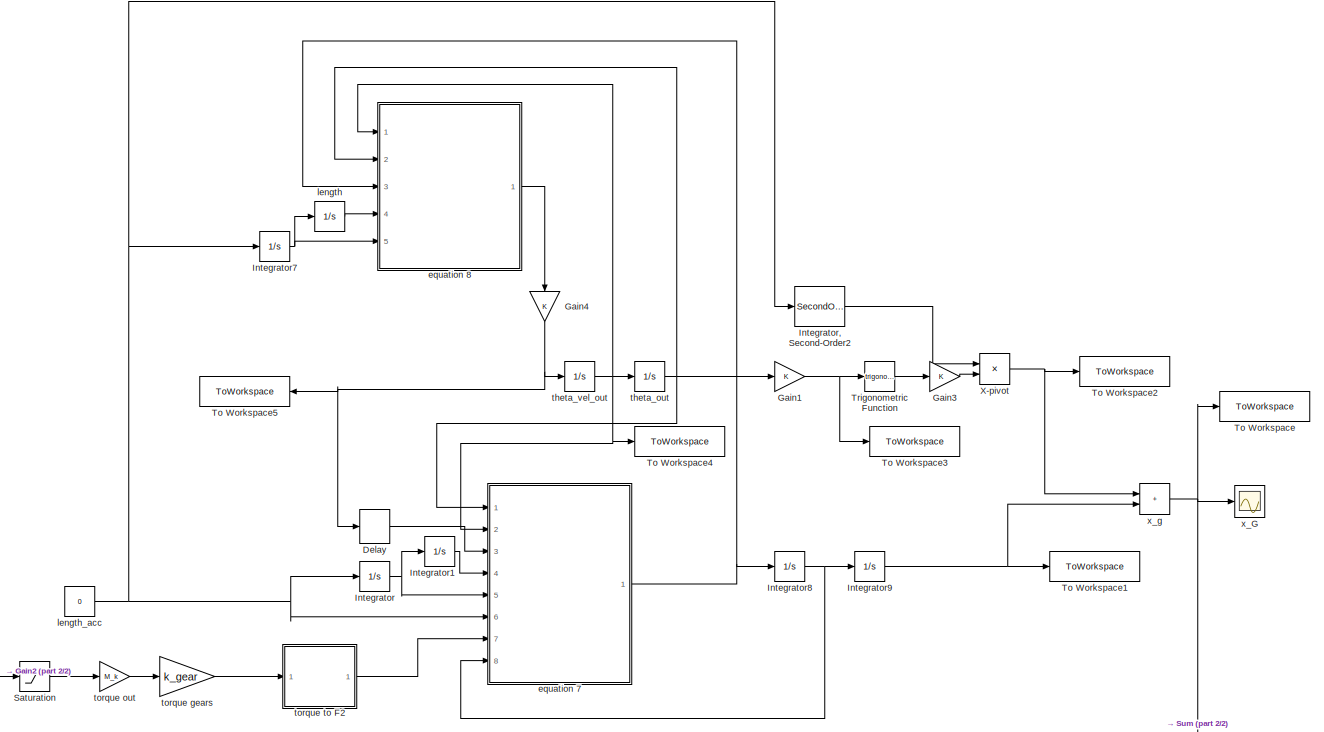
[diagram: root canvas - part 1/2, most of the canvas]
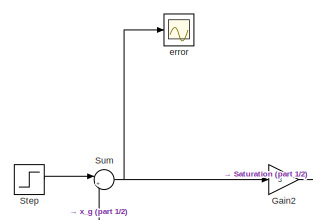
[diagram: root canvas - part 2/2, bottom left region]
MODEL slx_d86b22af026f
KIND model
CONFIG AbsTol = auto
CONFIG EnableMultiTasking = off
CONFIG FixedStep = auto
CONFIG MaxStep = .0001
CONFIG MinStep = auto
CONFIG RelTol = 1e-3
CONFIG SampleTimeConstraint = Unconstrained
CONFIG SolverName = VariableStepAuto
CONFIG StartTime = 0.0
CONFIG StopTime = 10
WORKSPACE source: mxarray member
WORKSPACE B_Dx = 9
WORKSPACE J_x = 0.2
WORKSPACE M_container = 2.9
WORKSPACE M_head = 1
WORKSPACE M_k = 0.0296
WORKSPACE M_trolley = 0.8
WORKSPACE k_gear = 20.57
WORKSPACE length_init = 1
WORKSPACE r_x = 0.16
BLOCK [Delay] Delay
  DelayLength = 1
  InitialCondition = 0
  InputPortMap = u0
  Ports = [1, 1]
BLOCK [Gain] Gain1
BLOCK [Gain] Gain2
  Gain = 3
BLOCK [Gain] Gain3
BLOCK [Gain] Gain4
  NameLocation = left
BLOCK [Integrator] Integrator
  Ports = [1, 1]
BLOCK [SecondOrderIntegrator] Integrator, Second-Order2
  ICX = length_init
  Ports = [1, 1]
  ShowOutput = x
BLOCK [Integrator] Integrator1
  InitialCondition = length_init
  Ports = [1, 1]
BLOCK [Integrator] Integrator7
  Ports = [1, 1]
BLOCK [Integrator] Integrator8
  Ports = [1, 1]
BLOCK [Integrator] Integrator9
  Ports = [1, 1]
BLOCK [Saturate] Saturation
  LowerLimit = -8
  UpperLimit = 8
BLOCK [Step] Step
  SampleTime = 0
BLOCK [Sum] Sum
  Inputs = |+-
  Ports = [2, 1]
BLOCK [ToWorkspace] To Workspace
  FixptAsFi = on
  MaxDataPoints = inf
  Ports = [1]
  SampleTime = -1
  SaveFormat = Timeseries
  VariableName = x_pos
BLOCK [ToWorkspace] To Workspace1
  FixptAsFi = on
  MaxDataPoints = inf
  Ports = [1]
  SampleTime = -1
  SaveFormat = Timeseries
  VariableName = x_trolley
BLOCK [ToWorkspace] To Workspace2
  FixptAsFi = on
  MaxDataPoints = inf
  Ports = [1]
  SampleTime = -1
  SaveFormat = Timeseries
  VariableName = x_pivot
BLOCK [ToWorkspace] To Workspace3
  FixptAsFi = on
  MaxDataPoints = inf
  Ports = [1]
  SampleTime = -1
  SaveFormat = Timeseries
  VariableName = theta
BLOCK [ToWorkspace] To Workspace4
  FixptAsFi = on
  MaxDataPoints = inf
  Ports = [1]
  SampleTime = -1
  SaveFormat = Timeseries
  VariableName = thetaVEL
BLOCK [ToWorkspace] To Workspace5
  FixptAsFi = on
  MaxDataPoints = inf
  NameLocation = top
  Ports = [1]
  SampleTime = -1
  SaveFormat = Timeseries
  VariableName = thetaACC
BLOCK [Trigonometry] Trigonometric Function
  Ports = [1, 1]
BLOCK [Product] X-pivot
  Ports = [2, 1]
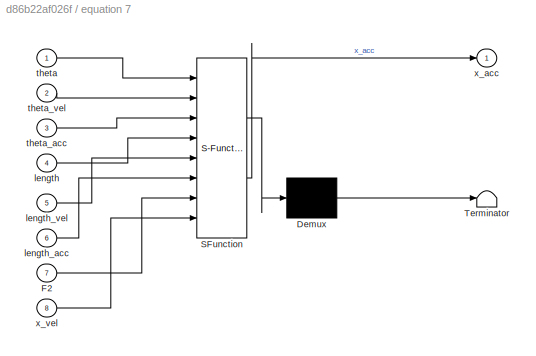
BLOCK [SubSystem] equation 7
  ErrorFcn = Stateflow.Translate.translate
  PermitHierarchicalResolution = ExplicitOnly
  Ports = [8, 1]
  RequestExecContextInheritance = off
  SFBlockType = MATLAB Function
  TreatAsAtomicUnit = on
BLOCK [Demux] equation 7/ Demux 
  Outputs = 1
  Ports = [1, 1]
BLOCK [S-Function] equation 7/ SFunction 
  EnableBusSupport = on
  FunctionName = sf_sfun
  Parameters = B_Dx,J_x,M_container,M_head,M_trolley,r_x
  PortCounts = [8 2]
  Ports = [8, 2]
  SFcnIsStateOwnerBlock = off
  SFunctionDeploymentMode = off
  Tag = Stateflow S-Function 2
BLOCK [Terminator] equation 7/ Terminator 
BLOCK [Inport] equation 7/F2
  Port = 7
BLOCK [Inport] equation 7/length
  Port = 4
BLOCK [Inport] equation 7/length_acc
  Port = 6
BLOCK [Inport] equation 7/length_vel
  Port = 5
BLOCK [Inport] equation 7/theta
BLOCK [Inport] equation 7/theta_acc
  Port = 3
BLOCK [Inport] equation 7/theta_vel
  Port = 2
BLOCK [Outport] equation 7/x_acc
BLOCK [Inport] equation 7/x_vel
  Port = 8
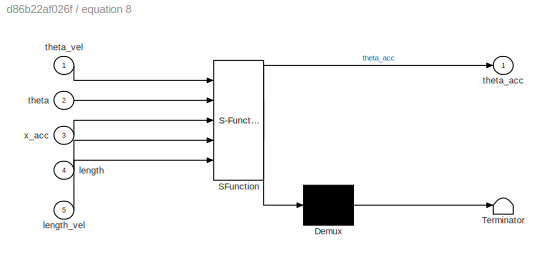
BLOCK [SubSystem] equation 8
  ErrorFcn = Stateflow.Translate.translate
  PermitHierarchicalResolution = ExplicitOnly
  Ports = [5, 1]
  RequestExecContextInheritance = off
  SFBlockType = MATLAB Function
  TreatAsAtomicUnit = on
BLOCK [Demux] equation 8/ Demux 
  Outputs = 1
  Ports = [1, 1]
BLOCK [S-Function] equation 8/ SFunction 
  EnableBusSupport = on
  FunctionName = sf_sfun
  PortCounts = [5 2]
  Ports = [5, 2]
  SFcnIsStateOwnerBlock = off
  SFunctionDeploymentMode = off
  Tag = Stateflow S-Function 1
BLOCK [Terminator] equation 8/ Terminator 
BLOCK [Inport] equation 8/length
  Port = 4
BLOCK [Inport] equation 8/length_vel
  Port = 5
BLOCK [Inport] equation 8/theta
  Port = 2
BLOCK [Outport] equation 8/theta_acc
BLOCK [Inport] equation 8/theta_vel
BLOCK [Inport] equation 8/x_acc
  Port = 3
BLOCK [Scope] error
  Floating = off
  NumInputPorts = 1
  Ports = [1]
  ScopeSpecificationString = Simulink.scopes.TimeScopeBlockCfg('CurrentConfiguration', extmgr.ConfigurationSet(extmgr.Configuration('Core','General UI',true),extmgr.Configuration('Core','Source UI',true),extmgr.Configuration('Sources','WiredSimulink',true,'DataLoggingVariableName','ScopeData1'),extmgr.Configuration('Visuals','Time Domain',true,'SerializedDisplays',{struct('MinYLimReal','-0.16212','MaxYLimReal','1.12912','YLab...<+1402ch>
BLOCK [Integrator] length
  InitialCondition = length_init
  Ports = [1, 1]
BLOCK [Constant] length_acc
  Value = 0
BLOCK [Integrator] theta_out
  Ports = [1, 1]
BLOCK [Integrator] theta_vel_out
  Ports = [1, 1]
BLOCK [Gain] torque gears
  Gain = k_gear
BLOCK [Gain] torque out
  Gain = M_k
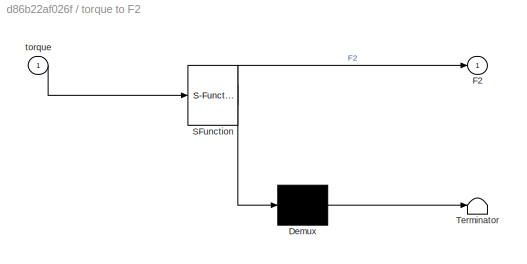
BLOCK [SubSystem] torque to F2
  ErrorFcn = Stateflow.Translate.translate
  PermitHierarchicalResolution = ExplicitOnly
  Ports = [1, 1]
  RequestExecContextInheritance = off
  SFBlockType = MATLAB Function
  TreatAsAtomicUnit = on
BLOCK [Demux] torque to F2/ Demux 
  Outputs = 1
  Ports = [1, 1]
BLOCK [S-Function] torque to F2/ SFunction 
  EnableBusSupport = on
  FunctionName = sf_sfun
  Parameters = J_x,M_container,M_head,M_trolley,r_x
  PortCounts = [1 2]
  Ports = [1, 2]
  SFcnIsStateOwnerBlock = off
  SFunctionDeploymentMode = off
  Tag = Stateflow S-Function 3
BLOCK [Terminator] torque to F2/ Terminator 
BLOCK [Outport] torque to F2/F2
BLOCK [Inport] torque to F2/torque
BLOCK [Scope] x_G
  Floating = off
  NumInputPorts = 1
  Ports = [1]
  ScopeSpecificationString = Simulink.scopes.TimeScopeBlockCfg('CurrentConfiguration', extmgr.ConfigurationSet(extmgr.Configuration('Core','General UI',true),extmgr.Configuration('Core','Source UI',true),extmgr.Configuration('Sources','WiredSimulink',true),extmgr.Configuration('Visuals','Time Domain',true,'SerializedDisplays',{struct('MinYLimReal','-0.14959','MaxYLimReal','1.34635','YLabelReal','','MinYLimMag','0.00000','MaxY...<+1435ch>
BLOCK [Sum] x_g
  IconShape = rectangular
  Ports = [2, 1]
LINE Delay:1 -> equation 7:3
NET Gain1:1 -> To Workspace3:1, Trigonometric Function:1
LINE Gain2:1 -> Saturation:1
LINE Gain3:1 -> X-pivot:2
NET Gain4:1 -> Delay:1, To Workspace5:1, theta_vel_out:1
LINE Integrator, Second-Order2:1 -> X-pivot:1
LINE Integrator1:1 -> equation 7:4
NET Integrator7:1 -> equation 8:5, length:1
NET Integrator8:1 -> Integrator9:1, equation 7:8
NET Integrator9:1 -> To Workspace1:1, x_g:2
NET Integrator:1 -> Integrator1:1, equation 7:5
LINE Saturation:1 -> torque out:1
LINE Step:1 -> Sum:1
NET Sum:1 -> Gain2:1, error:1
LINE Trigonometric Function:1 -> Gain3:1
NET X-pivot:1 -> To Workspace2:1, x_g:1
NET equation 7:1 -> Integrator8:1, equation 8:3
LINE equation 8:1 -> Gain4:1
LINE length:1 -> equation 8:4
NET length_acc:1 -> Integrator, Second-Order2:1, Integrator7:1, Integrator:1, equation 7:6
NET theta_out:1 -> Gain1:1, equation 7:1, equation 8:2
NET theta_vel_out:1 -> To Workspace4:1, equation 7:2, equation 8:1, theta_out:1
LINE torque gears:1 -> torque to F2:1
LINE torque out:1 -> torque gears:1
LINE torque to F2:1 -> equation 7:7
NET x_g:1 -> Sum:2, To Workspace:1, x_G:1
note: NET lines group one-source signal fan-out (src -> all destinations, sorted); 1:1 wires keep LINE
CHART equation 8 states=1 transitions=1
  STATE_LABEL 'eML_blk_kernel()'
  STATE_LABEL 'SCRIPT:\nfunction theta_acc = equation8(theta_vel, theta, x_acc, length, length_vel)\n\ntheta_acc = -1/length * (2*length_vel*theta_vel + 9.82*sin(theta)+x_acc*cos(theta));\n'
CHART equation 7 states=1 transitions=1
  STATE_LABEL 'eML_blk_kernel()'
  STATE_LABEL 'SCRIPT:\nfunction x_acc = equation7(theta, theta_vel, theta_acc, length, length_vel, length_acc, F2, x_vel,  M_container, M_trolley, M_head, J_x, r_x, B_Dx)\n\nM = M_container + M_trolley;\nM_1 = M + M_head + J_x/(r_x^2);\n\nb_1 = M/M_1;\n\n\ntemp = F2 - b_1*length_acc*sin(theta) - b_1*length*theta_acc*cos(theta) + b_1*length*theta_vel^2*sin(theta) - 2 * b_1*length_vel*theta_vel*cos(theta) - x_vel*B_Dx/M_1...<+18ch>'
CHART torque to F2 states=1 transitions=1
  STATE_LABEL 'eML_blk_kernel()'
  STATE_LABEL 'SCRIPT:\nfunction F2 = torque_2_F2(torque,r_x, M_container, M_head, M_trolley, J_x)\n\nF2 = torque/r_x/(M_container+M_head+M_trolley + J_x/(r_x^2));\n'
CHART  states=0 transitions=0
CHART  states=0 transitions=0
CHART  states=0 transitions=0
